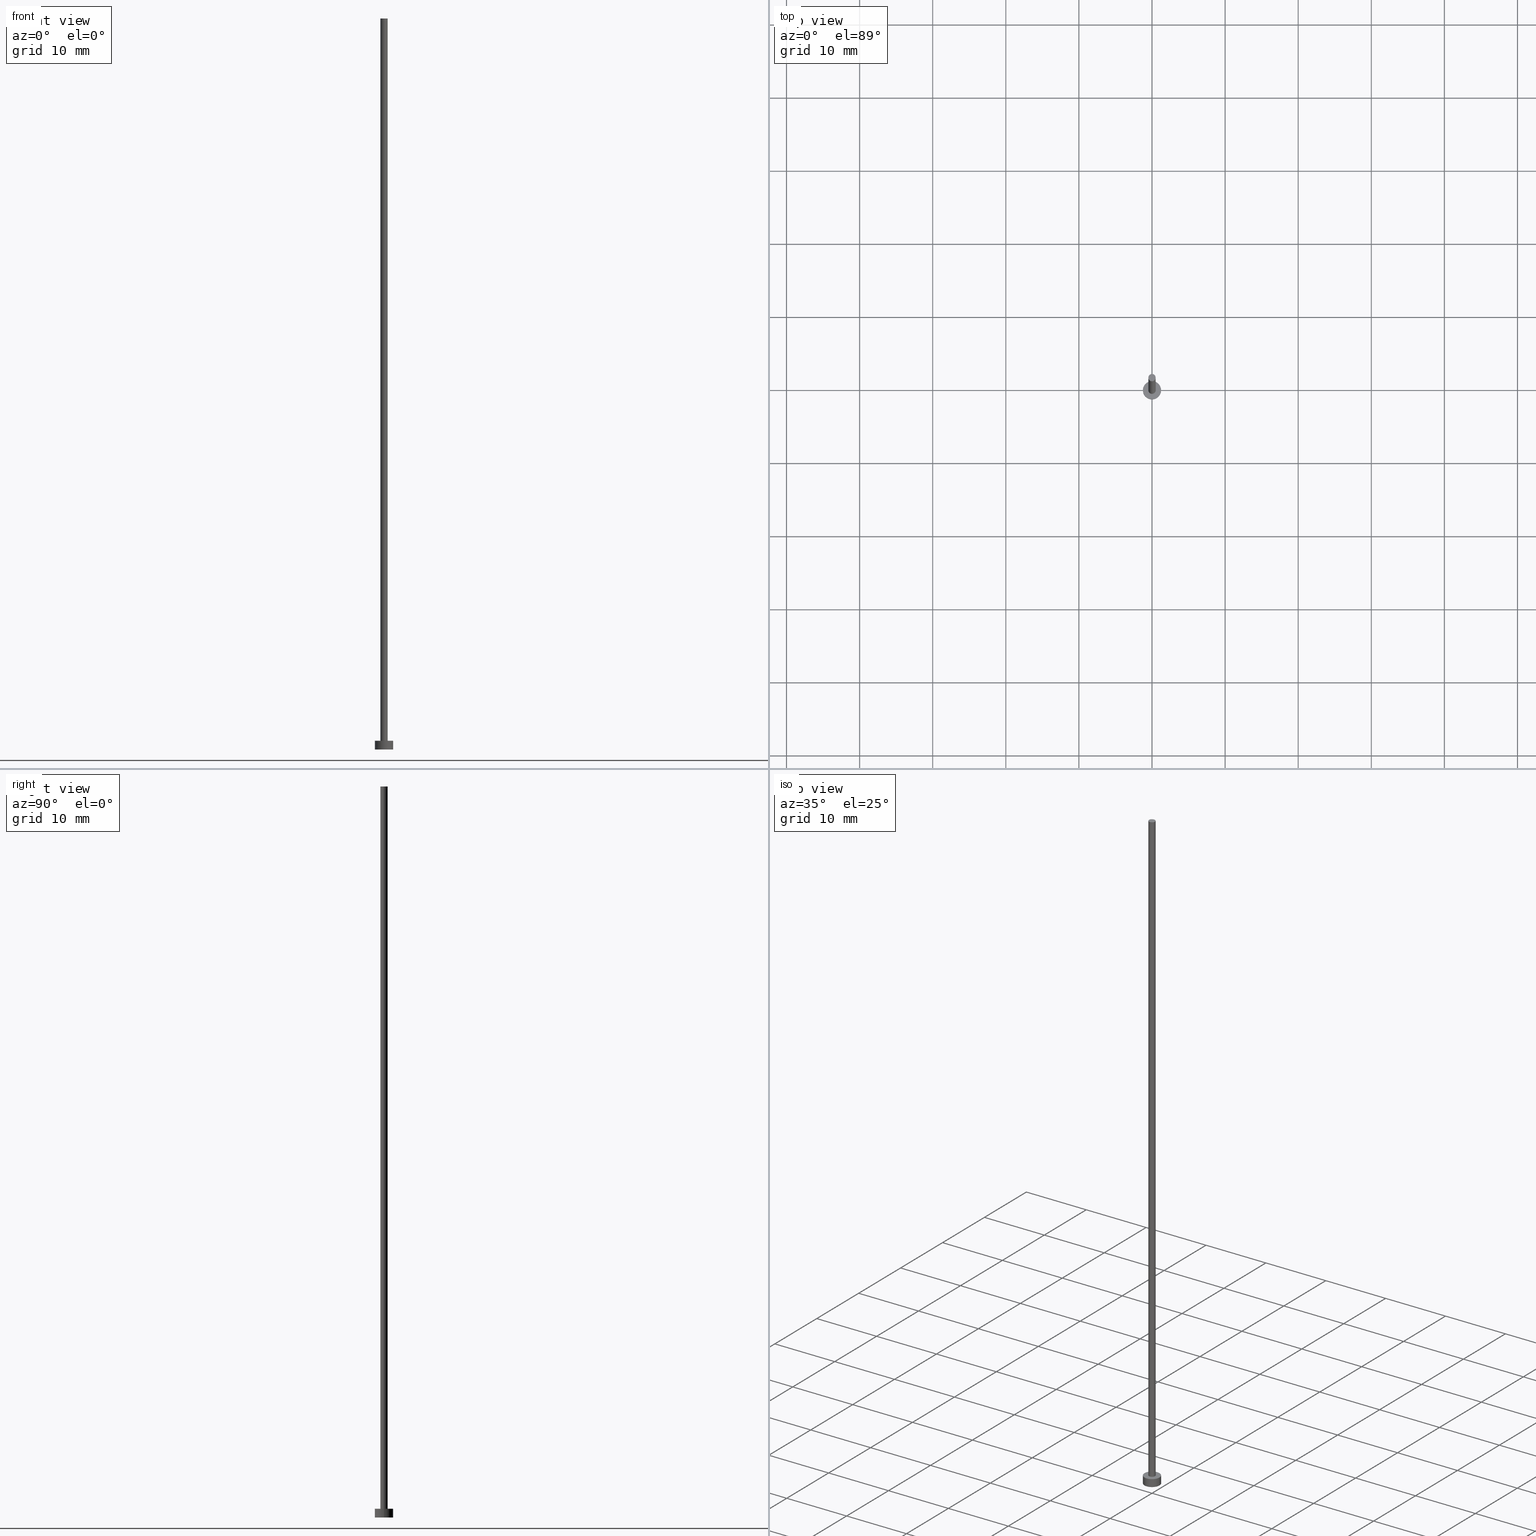
[diagram: canonical four-view strip — front | top / right | iso, engineering-drawing reading convention]
A machine part, canonical four-view strip (front | top / right | iso — engineering-drawing reading convention). The complete STEP part file that produces these views, byte-faithful:
ISO-10303-21;
HEADER;
FILE_DESCRIPTION (( 'STEP AP203' ),
    '1' );
FILE_NAME ('5040.STEP',
    '2025-08-11T15:44:10',
    ( '' ),
    ( '' ),
    'SwSTEP 2.0',
    'SolidWorks 2019',
    '' );
FILE_SCHEMA (( 'CONFIG_CONTROL_DESIGN' ));
ENDSEC;

DATA;
#1 = CC_DESIGN_PERSON_AND_ORGANIZATION_ASSIGNMENT ( #37, #207, ( #138 ) ) ;
#2 =( GEOMETRIC_REPRESENTATION_CONTEXT ( 3 ) GLOBAL_UNCERTAINTY_ASSIGNED_CONTEXT ( ( #209 ) ) GLOBAL_UNIT_ASSIGNED_CONTEXT ( ( #132, #190, #67 ) ) REPRESENTATION_CONTEXT ( 'NONE', 'WORKASPACE' ) );
#3 = CARTESIAN_POINT ( 'NONE',  ( 0.000000000000000000, 0.000000000000000000, 1.199999999999999956 ) ) ;
#4 = CARTESIAN_POINT ( 'NONE',  ( 1.250000000000000000, 1.530808498934191571E-16, 1.199999999999999956 ) ) ;
#5 = DIRECTION ( 'NONE',  ( 1.000000000000000000, 0.000000000000000000, 0.000000000000000000 ) ) ;
#6 = CC_DESIGN_PERSON_AND_ORGANIZATION_ASSIGNMENT ( #185, #131, ( #184 ) ) ;
#7 = CIRCLE ( 'NONE', #65, 1.250000000000000000 ) ;
#8 = AXIS2_PLACEMENT_3D ( 'NONE', #53, #211, #186 ) ;
#9 = VERTEX_POINT ( 'NONE', #136 ) ;
#10 = DIRECTION ( 'NONE',  ( 0.000000000000000000, 0.000000000000000000, 1.000000000000000000 ) ) ;
#11 = ORIENTED_EDGE ( 'NONE', *, *, #16, .F. ) ;
#12 = CC_DESIGN_PERSON_AND_ORGANIZATION_ASSIGNMENT ( #109, #36, ( #13 ) ) ;
#13 = SECURITY_CLASSIFICATION ( '', '', #168 ) ;
#14 = DATE_TIME_ROLE ( 'creation_date' ) ;
#15 = EDGE_LOOP ( 'NONE', ( #234, #148, #221, #19 ) ) ;
#16 = EDGE_CURVE ( 'NONE', #56, #201, #122, .T. ) ;
#17 = CALENDAR_DATE ( 2025, 11, 8 ) ;
#18 = VECTOR ( 'NONE', #222, 1000.000000000000000 ) ;
#19 = ORIENTED_EDGE ( 'NONE', *, *, #86, .T. ) ;
#20 = DIRECTION ( 'NONE',  ( -0.000000000000000000, -0.000000000000000000, -1.000000000000000000 ) ) ;
#21 = EDGE_CURVE ( 'NONE', #252, #139, #142, .T. ) ;
#22 = CARTESIAN_POINT ( 'NONE',  ( 0.000000000000000000, 0.000000000000000000, 100.0000000000000000 ) ) ;
#23 = DIRECTION ( 'NONE',  ( 0.000000000000000000, 0.000000000000000000, 1.000000000000000000 ) ) ;
#24 = FACE_OUTER_BOUND ( 'NONE', #214, .T. ) ;
#25 = ADVANCED_FACE ( 'NONE', ( #146 ), #143, .T. ) ;
#26 = DIRECTION ( 'NONE',  ( -1.000000000000000000, 0.000000000000000000, 0.000000000000000000 ) ) ;
#27 = CARTESIAN_POINT ( 'NONE',  ( 0.000000000000000000, 0.000000000000000000, 1.199999999999999956 ) ) ;
#28 = DIRECTION ( 'NONE',  ( -0.000000000000000000, -0.000000000000000000, -1.000000000000000000 ) ) ;
#29 = CARTESIAN_POINT ( 'NONE',  ( 0.000000000000000000, 0.000000000000000000, 0.000000000000000000 ) ) ;
#30 = EDGE_CURVE ( 'NONE', #81, #91, #242, .T. ) ;
#31 = APPLICATION_CONTEXT ( 'configuration controlled 3d designs of mechanical parts and assemblies' ) ;
#32 = DATE_AND_TIME ( #228, #66 ) ;
#33 = PERSON_AND_ORGANIZATION ( #47, #160 ) ;
#34 = APPROVAL_STATUS ( 'not_yet_approved' ) ;
#35 = LINE ( 'NONE', #52, #38 ) ;
#36 = PERSON_AND_ORGANIZATION_ROLE ( 'classification_officer' ) ;
#37 = PERSON_AND_ORGANIZATION ( #47, #160 ) ;
#38 = VECTOR ( 'NONE', #188, 1000.000000000000000 ) ;
#39 = SHAPE_DEFINITION_REPRESENTATION ( #255, #111 ) ;
#40 = DIRECTION ( 'NONE',  ( 1.000000000000000000, 0.000000000000000000, 0.000000000000000000 ) ) ;
#41 = DIRECTION ( 'NONE',  ( -1.000000000000000000, 0.000000000000000000, 0.000000000000000000 ) ) ;
#42 = PLANE ( 'NONE',  #151 ) ;
#43 = CIRCLE ( 'NONE', #130, 0.5000000000000000000 ) ;
#44 = CARTESIAN_POINT ( 'NONE',  ( 0.000000000000000000, 0.000000000000000000, 1.199999999999999956 ) ) ;
#45 = ADVANCED_FACE ( 'NONE', ( #120 ), #77, .T. ) ;
#46 = DIRECTION ( 'NONE',  ( 0.000000000000000000, 0.000000000000000000, 1.000000000000000000 ) ) ;
#47 = PERSON ( 'NEUR�EN�', 'NEUR�EN�', 'NEUR�EN�', ('NEUR�EN�'), ('NEUR�EN�'), ('NEUR�EN�') ) ;
#48 = AXIS2_PLACEMENT_3D ( 'NONE', #90, #172, #254 ) ;
#49 = CC_DESIGN_PERSON_AND_ORGANIZATION_ASSIGNMENT ( #103, #84, ( #194 ) ) ;
#50 = APPROVAL_ROLE ( '' ) ;
#51 = PERSON_AND_ORGANIZATION_ROLE ( 'creator' ) ;
#52 = CARTESIAN_POINT ( 'NONE',  ( -1.250000000000000000, 0.000000000000000000, 1.199999999999999956 ) ) ;
#53 = CARTESIAN_POINT ( 'NONE',  ( 0.000000000000000000, 0.000000000000000000, 0.000000000000000000 ) ) ;
#54 = CC_DESIGN_APPROVAL ( #235, ( #13 ) ) ;
#55 = DATE_AND_TIME ( #70, #203 ) ;
#56 = VERTEX_POINT ( 'NONE', #116 ) ;
#57 = EDGE_CURVE ( 'NONE', #139, #252, #43, .T. ) ;
#58 = EDGE_LOOP ( 'NONE', ( #117, #195 ) ) ;
#59 = ORIENTED_EDGE ( 'NONE', *, *, #86, .F. ) ;
#60 = DIRECTION ( 'NONE',  ( -0.000000000000000000, -0.000000000000000000, -1.000000000000000000 ) ) ;
#61 = FACE_OUTER_BOUND ( 'NONE', #182, .T. ) ;
#62 = CC_DESIGN_DATE_AND_TIME_ASSIGNMENT ( #32, #14, ( #184 ) ) ;
#63 = ADVANCED_FACE ( 'NONE', ( #176 ), #236, .T. ) ;
#64 = COORDINATED_UNIVERSAL_TIME_OFFSET ( 1, 0, .AHEAD. ) ;
#65 = AXIS2_PLACEMENT_3D ( 'NONE', #27, #147, #219 ) ;
#66 = LOCAL_TIME ( 17, 44, 10.00000000000000000, #71 ) ;
#67 =( NAMED_UNIT ( * ) SI_UNIT ( $, .STERADIAN. ) SOLID_ANGLE_UNIT ( ) );
#68 = CARTESIAN_POINT ( 'NONE',  ( 0.5000000000000000000, 6.123233995736766036E-17, 100.0000000000000000 ) ) ;
#69 = DIRECTION ( 'NONE',  ( 0.000000000000000000, 0.000000000000000000, 1.000000000000000000 ) ) ;
#70 = CALENDAR_DATE ( 2025, 11, 8 ) ;
#71 = COORDINATED_UNIVERSAL_TIME_OFFSET ( 1, 0, .AHEAD. ) ;
#72 = AXIS2_PLACEMENT_3D ( 'NONE', #44, #100, #40 ) ;
#73 = APPROVAL_STATUS ( 'not_yet_approved' ) ;
#74 = PRODUCT_RELATED_PRODUCT_CATEGORY ( 'detail', '', ( #138 ) ) ;
#75 = ORIENTED_EDGE ( 'NONE', *, *, #21, .F. ) ;
#76 = ORIENTED_EDGE ( 'NONE', *, *, #110, .T. ) ;
#77 = CYLINDRICAL_SURFACE ( 'NONE', #179, 1.250000000000000000 ) ;
#78 = DIRECTION ( 'NONE',  ( -1.000000000000000000, 0.000000000000000000, 0.000000000000000000 ) ) ;
#79 = AXIS2_PLACEMENT_3D ( 'NONE', #29, #46, #123 ) ;
#80 = LOCAL_TIME ( 17, 44, 10.00000000000000000, #126 ) ;
#81 = VERTEX_POINT ( 'NONE', #121 ) ;
#82 = ORIENTED_EDGE ( 'NONE', *, *, #127, .F. ) ;
#83 = CARTESIAN_POINT ( 'NONE',  ( 0.000000000000000000, 0.000000000000000000, 0.000000000000000000 ) ) ;
#84 = PERSON_AND_ORGANIZATION_ROLE ( 'design_supplier' ) ;
#85 = DIRECTION ( 'NONE',  ( 1.000000000000000000, 0.000000000000000000, -0.000000000000000000 ) ) ;
#86 = EDGE_CURVE ( 'NONE', #239, #9, #244, .T. ) ;
#87 = CC_DESIGN_PERSON_AND_ORGANIZATION_ASSIGNMENT ( #33, #51, ( #194 ) ) ;
#88 = EDGE_LOOP ( 'NONE', ( #59, #133 ) ) ;
#89 = ORIENTED_EDGE ( 'NONE', *, *, #165, .F. ) ;
#90 = CARTESIAN_POINT ( 'NONE',  ( 0.000000000000000000, 0.000000000000000000, 0.000000000000000000 ) ) ;
#91 = VERTEX_POINT ( 'NONE', #163 ) ;
#92 = DIRECTION ( 'NONE',  ( 1.000000000000000000, 0.000000000000000000, -0.000000000000000000 ) ) ;
#93 = CARTESIAN_POINT ( 'NONE',  ( 0.000000000000000000, 0.000000000000000000, 100.0000000000000000 ) ) ;
#94 = CARTESIAN_POINT ( 'NONE',  ( 0.000000000000000000, 0.000000000000000000, 1.199999999999999956 ) ) ;
#95 = DIRECTION ( 'NONE',  ( -1.000000000000000000, 0.000000000000000000, 0.000000000000000000 ) ) ;
#96 = VECTOR ( 'NONE', #60, 1000.000000000000000 ) ;
#97 = ADVANCED_FACE ( 'NONE', ( #197, #61 ), #42, .T. ) ;
#98 = ORIENTED_EDGE ( 'NONE', *, *, #249, .T. ) ;
#99 = AXIS2_PLACEMENT_3D ( 'NONE', #250, #245, #189 ) ;
#100 = DIRECTION ( 'NONE',  ( 0.000000000000000000, 0.000000000000000000, 1.000000000000000000 ) ) ;
#101 = PLANE ( 'NONE',  #79 ) ;
#102 = AXIS2_PLACEMENT_3D ( 'NONE', #200, #28, #26 ) ;
#103 = PERSON_AND_ORGANIZATION ( #47, #160 ) ;
#104 = EDGE_CURVE ( 'NONE', #56, #9, #175, .T. ) ;
#105 = CARTESIAN_POINT ( 'NONE',  ( -0.5000000000000000000, 0.000000000000000000, 100.0000000000000000 ) ) ;
#106 = CARTESIAN_POINT ( 'NONE',  ( 0.5000000000000000000, 6.123233995736766036E-17, 100.0000000000000000 ) ) ;
#107 = CIRCLE ( 'NONE', #99, 0.5000000000000000000 ) ;
#108 = CC_DESIGN_APPROVAL ( #119, ( #184 ) ) ;
#109 = PERSON_AND_ORGANIZATION ( #47, #160 ) ;
#110 = EDGE_CURVE ( 'NONE', #9, #239, #167, .T. ) ;
#111 = ADVANCED_BREP_SHAPE_REPRESENTATION ( '5040', ( #140, #8 ), #2 ) ;
#112 = APPROVAL_DATE_TIME ( #230, #235 ) ;
#113 = AXIS2_PLACEMENT_3D ( 'NONE', #129, #69, #85 ) ;
#114 = LOCAL_TIME ( 17, 44, 10.00000000000000000, #174 ) ;
#115 = LINE ( 'NONE', #68, #18 ) ;
#116 = CARTESIAN_POINT ( 'NONE',  ( 1.250000000000000000, 1.530808498934191571E-16, 1.199999999999999956 ) ) ;
#117 = ORIENTED_EDGE ( 'NONE', *, *, #57, .T. ) ;
#118 = CARTESIAN_POINT ( 'NONE',  ( 0.000000000000000000, 0.000000000000000000, 1.199999999999999956 ) ) ;
#119 = APPROVAL ( #73, 'NEUR�EN�' ) ;
#120 = FACE_OUTER_BOUND ( 'NONE', #15, .T. ) ;
#121 = CARTESIAN_POINT ( 'NONE',  ( -0.5000000000000000000, 0.000000000000000000, 1.199999999999999956 ) ) ;
#122 = CIRCLE ( 'NONE', #72, 1.250000000000000000 ) ;
#123 = DIRECTION ( 'NONE',  ( 1.000000000000000000, 0.000000000000000000, -0.000000000000000000 ) ) ;
#124 = ADVANCED_FACE ( 'NONE', ( #204 ), #101, .F. ) ;
#125 = CALENDAR_DATE ( 2025, 11, 8 ) ;
#126 = COORDINATED_UNIVERSAL_TIME_OFFSET ( 1, 0, .AHEAD. ) ;
#127 = EDGE_CURVE ( 'NONE', #139, #81, #205, .T. ) ;
#128 = DATE_TIME_ROLE ( 'classification_date' ) ;
#129 = CARTESIAN_POINT ( 'NONE',  ( 0.000000000000000000, 0.000000000000000000, 100.0000000000000000 ) ) ;
#130 = AXIS2_PLACEMENT_3D ( 'NONE', #93, #162, #220 ) ;
#131 = PERSON_AND_ORGANIZATION_ROLE ( 'creator' ) ;
#132 =( LENGTH_UNIT ( ) NAMED_UNIT ( * ) SI_UNIT ( .MILLI., .METRE. ) );
#133 = ORIENTED_EDGE ( 'NONE', *, *, #110, .F. ) ;
#134 = CALENDAR_DATE ( 2025, 11, 8 ) ;
#135 = AXIS2_PLACEMENT_3D ( 'NONE', #94, #178, #41 ) ;
#136 = CARTESIAN_POINT ( 'NONE',  ( 1.250000000000000000, 1.530808498934191571E-16, 0.000000000000000000 ) ) ;
#137 = DIRECTION ( 'NONE',  ( 1.000000000000000000, 0.000000000000000000, 0.000000000000000000 ) ) ;
#138 = PRODUCT ( '5040', '5040', '', ( #192 ) ) ;
#139 = VERTEX_POINT ( 'NONE', #105 ) ;
#140 = MANIFOLD_SOLID_BREP ( 'P�idat vysunut�m3', #213 ) ;
#141 = DIRECTION ( 'NONE',  ( -0.000000000000000000, -0.000000000000000000, -1.000000000000000000 ) ) ;
#142 = CIRCLE ( 'NONE', #183, 0.5000000000000000000 ) ;
#143 = CYLINDRICAL_SURFACE ( 'NONE', #102, 0.5000000000000000000 ) ;
#144 = CYLINDRICAL_SURFACE ( 'NONE', #135, 1.250000000000000000 ) ;
#145 = APPROVAL ( #248, 'NEUR�EN�' ) ;
#146 = FACE_OUTER_BOUND ( 'NONE', #231, .T. ) ;
#147 = DIRECTION ( 'NONE',  ( 0.000000000000000000, 0.000000000000000000, 1.000000000000000000 ) ) ;
#148 = ORIENTED_EDGE ( 'NONE', *, *, #166, .F. ) ;
#149 = DIRECTION ( 'NONE',  ( 1.000000000000000000, 0.000000000000000000, 0.000000000000000000 ) ) ;
#150 = CC_DESIGN_SECURITY_CLASSIFICATION ( #13, ( #194 ) ) ;
#151 = AXIS2_PLACEMENT_3D ( 'NONE', #118, #23, #92 ) ;
#152 = AXIS2_PLACEMENT_3D ( 'NONE', #83, #10, #149 ) ;
#153 = DATE_AND_TIME ( #125, #154 ) ;
#154 = LOCAL_TIME ( 17, 44, 10.00000000000000000, #64 ) ;
#155 = FACE_OUTER_BOUND ( 'NONE', #58, .T. ) ;
#156 = APPLICATION_PROTOCOL_DEFINITION ( 'international standard', 'config_control_design', 1994, #31 ) ;
#157 = APPROVAL_ROLE ( '' ) ;
#158 = ORIENTED_EDGE ( 'NONE', *, *, #249, .F. ) ;
#159 = ADVANCED_FACE ( 'NONE', ( #155 ), #246, .T. ) ;
#160 = ORGANIZATION ( 'NEUR�EN�', 'NEUR�EN�', '' ) ;
#161 = ORIENTED_EDGE ( 'NONE', *, *, #30, .T. ) ;
#162 = DIRECTION ( 'NONE',  ( 0.000000000000000000, 0.000000000000000000, 1.000000000000000000 ) ) ;
#163 = CARTESIAN_POINT ( 'NONE',  ( 0.5000000000000000000, 6.123233995736766036E-17, 1.199999999999999956 ) ) ;
#164 = EDGE_LOOP ( 'NONE', ( #233, #158 ) ) ;
#165 = EDGE_CURVE ( 'NONE', #201, #239, #35, .T. ) ;
#166 = EDGE_CURVE ( 'NONE', #201, #56, #7, .T. ) ;
#167 = CIRCLE ( 'NONE', #152, 1.250000000000000000 ) ;
#168 = SECURITY_CLASSIFICATION_LEVEL ( 'unclassified' ) ;
#169 = APPROVAL_DATE_TIME ( #153, #119 ) ;
#170 = APPROVAL_DATE_TIME ( #208, #145 ) ;
#171 = ORIENTED_EDGE ( 'NONE', *, *, #127, .T. ) ;
#172 = DIRECTION ( 'NONE',  ( 0.000000000000000000, 0.000000000000000000, 1.000000000000000000 ) ) ;
#173 = EDGE_LOOP ( 'NONE', ( #202, #229, #171, #161 ) ) ;
#174 = COORDINATED_UNIVERSAL_TIME_OFFSET ( 1, 0, .AHEAD. ) ;
#175 = LINE ( 'NONE', #4, #96 ) ;
#176 = FACE_OUTER_BOUND ( 'NONE', #173, .T. ) ;
#177 = ADVANCED_FACE ( 'NONE', ( #24 ), #144, .T. ) ;
#178 = DIRECTION ( 'NONE',  ( -0.000000000000000000, -0.000000000000000000, -1.000000000000000000 ) ) ;
#179 = AXIS2_PLACEMENT_3D ( 'NONE', #199, #141, #95 ) ;
#180 = ORIENTED_EDGE ( 'NONE', *, *, #206, .T. ) ;
#181 = DIRECTION ( 'NONE',  ( -0.000000000000000000, -0.000000000000000000, -1.000000000000000000 ) ) ;
#182 = EDGE_LOOP ( 'NONE', ( #216, #253 ) ) ;
#183 = AXIS2_PLACEMENT_3D ( 'NONE', #22, #237, #137 ) ;
#184 = PRODUCT_DEFINITION ( 'NEZN�M�', '', #194, #241 ) ;
#185 = PERSON_AND_ORGANIZATION ( #47, #160 ) ;
#186 = DIRECTION ( 'NONE',  ( 1.000000000000000000, 0.000000000000000000, 0.000000000000000000 ) ) ;
#187 = AXIS2_PLACEMENT_3D ( 'NONE', #3, #218, #5 ) ;
#188 = DIRECTION ( 'NONE',  ( -0.000000000000000000, -0.000000000000000000, -1.000000000000000000 ) ) ;
#189 = DIRECTION ( 'NONE',  ( 1.000000000000000000, 0.000000000000000000, 0.000000000000000000 ) ) ;
#190 =( NAMED_UNIT ( * ) PLANE_ANGLE_UNIT ( ) SI_UNIT ( $, .RADIAN. ) );
#191 = APPLICATION_CONTEXT ( 'configuration controlled 3d designs of mechanical parts and assemblies' ) ;
#192 = MECHANICAL_CONTEXT ( 'NONE', #31, 'mechanical' ) ;
#193 = AXIS2_PLACEMENT_3D ( 'NONE', #198, #20, #78 ) ;
#194 = PRODUCT_DEFINITION_FORMATION_WITH_SPECIFIED_SOURCE ( 'LIBOVOLN�', '', #138, .NOT_KNOWN. ) ;
#195 = ORIENTED_EDGE ( 'NONE', *, *, #21, .T. ) ;
#196 = CARTESIAN_POINT ( 'NONE',  ( -1.250000000000000000, 0.000000000000000000, 1.199999999999999956 ) ) ;
#197 = FACE_BOUND ( 'NONE', #164, .T. ) ;
#198 = CARTESIAN_POINT ( 'NONE',  ( 0.000000000000000000, 0.000000000000000000, 100.0000000000000000 ) ) ;
#199 = CARTESIAN_POINT ( 'NONE',  ( 0.000000000000000000, 0.000000000000000000, 1.199999999999999956 ) ) ;
#200 = CARTESIAN_POINT ( 'NONE',  ( 0.000000000000000000, 0.000000000000000000, 100.0000000000000000 ) ) ;
#201 = VERTEX_POINT ( 'NONE', #196 ) ;
#202 = ORIENTED_EDGE ( 'NONE', *, *, #206, .F. ) ;
#203 = LOCAL_TIME ( 17, 44, 10.00000000000000000, #226 ) ;
#204 = FACE_OUTER_BOUND ( 'NONE', #88, .T. ) ;
#205 = LINE ( 'NONE', #240, #223 ) ;
#206 = EDGE_CURVE ( 'NONE', #252, #91, #115, .T. ) ;
#207 = PERSON_AND_ORGANIZATION_ROLE ( 'design_owner' ) ;
#208 = DATE_AND_TIME ( #17, #80 ) ;
#209 = UNCERTAINTY_MEASURE_WITH_UNIT (LENGTH_MEASURE( 1.000000000000000082E-05 ), #132, 'distance_accuracy_value', 'NONE');
#210 = PERSON_AND_ORGANIZATION ( #47, #160 ) ;
#211 = DIRECTION ( 'NONE',  ( 0.000000000000000000, 0.000000000000000000, 1.000000000000000000 ) ) ;
#212 = CC_DESIGN_DATE_AND_TIME_ASSIGNMENT ( #55, #128, ( #13 ) ) ;
#213 = CLOSED_SHELL ( 'NONE', ( #25, #177, #45, #97, #124, #63, #159 ) ) ;
#214 = EDGE_LOOP ( 'NONE', ( #11, #217, #76, #89 ) ) ;
#215 = APPROVAL_ROLE ( '' ) ;
#216 = ORIENTED_EDGE ( 'NONE', *, *, #166, .T. ) ;
#217 = ORIENTED_EDGE ( 'NONE', *, *, #104, .T. ) ;
#218 = DIRECTION ( 'NONE',  ( 0.000000000000000000, 0.000000000000000000, 1.000000000000000000 ) ) ;
#219 = DIRECTION ( 'NONE',  ( 1.000000000000000000, 0.000000000000000000, 0.000000000000000000 ) ) ;
#220 = DIRECTION ( 'NONE',  ( 1.000000000000000000, 0.000000000000000000, 0.000000000000000000 ) ) ;
#221 = ORIENTED_EDGE ( 'NONE', *, *, #165, .T. ) ;
#222 = DIRECTION ( 'NONE',  ( -0.000000000000000000, -0.000000000000000000, -1.000000000000000000 ) ) ;
#223 = VECTOR ( 'NONE', #181, 1000.000000000000000 ) ;
#224 = PERSON_AND_ORGANIZATION ( #47, #160 ) ;
#225 = APPLICATION_PROTOCOL_DEFINITION ( 'international standard', 'config_control_design', 1994, #191 ) ;
#226 = COORDINATED_UNIVERSAL_TIME_OFFSET ( 1, 0, .AHEAD. ) ;
#227 = CARTESIAN_POINT ( 'NONE',  ( -1.250000000000000000, 0.000000000000000000, 0.000000000000000000 ) ) ;
#228 = CALENDAR_DATE ( 2025, 11, 8 ) ;
#229 = ORIENTED_EDGE ( 'NONE', *, *, #57, .F. ) ;
#230 = DATE_AND_TIME ( #134, #114 ) ;
#231 = EDGE_LOOP ( 'NONE', ( #75, #180, #98, #82 ) ) ;
#232 = CC_DESIGN_APPROVAL ( #145, ( #194 ) ) ;
#233 = ORIENTED_EDGE ( 'NONE', *, *, #30, .F. ) ;
#234 = ORIENTED_EDGE ( 'NONE', *, *, #104, .F. ) ;
#235 = APPROVAL ( #34, 'NEUR�EN�' ) ;
#236 = CYLINDRICAL_SURFACE ( 'NONE', #193, 0.5000000000000000000 ) ;
#237 = DIRECTION ( 'NONE',  ( 0.000000000000000000, 0.000000000000000000, 1.000000000000000000 ) ) ;
#238 = APPROVAL_PERSON_ORGANIZATION ( #247, #119, #157 ) ;
#239 = VERTEX_POINT ( 'NONE', #227 ) ;
#240 = CARTESIAN_POINT ( 'NONE',  ( -0.5000000000000000000, 0.000000000000000000, 100.0000000000000000 ) ) ;
#241 = DESIGN_CONTEXT ( 'detailed design', #191, 'design' ) ;
#242 = CIRCLE ( 'NONE', #187, 0.5000000000000000000 ) ;
#243 = APPROVAL_PERSON_ORGANIZATION ( #210, #235, #215 ) ;
#244 = CIRCLE ( 'NONE', #48, 1.250000000000000000 ) ;
#245 = DIRECTION ( 'NONE',  ( 0.000000000000000000, 0.000000000000000000, 1.000000000000000000 ) ) ;
#246 = PLANE ( 'NONE',  #113 ) ;
#247 = PERSON_AND_ORGANIZATION ( #47, #160 ) ;
#248 = APPROVAL_STATUS ( 'not_yet_approved' ) ;
#249 = EDGE_CURVE ( 'NONE', #91, #81, #107, .T. ) ;
#250 = CARTESIAN_POINT ( 'NONE',  ( 0.000000000000000000, 0.000000000000000000, 1.199999999999999956 ) ) ;
#251 = APPROVAL_PERSON_ORGANIZATION ( #224, #145, #50 ) ;
#252 = VERTEX_POINT ( 'NONE', #106 ) ;
#253 = ORIENTED_EDGE ( 'NONE', *, *, #16, .T. ) ;
#254 = DIRECTION ( 'NONE',  ( 1.000000000000000000, 0.000000000000000000, 0.000000000000000000 ) ) ;
#255 = PRODUCT_DEFINITION_SHAPE ( 'NONE', 'NONE',  #184 ) ;
ENDSEC;
END-ISO-10303-21;
